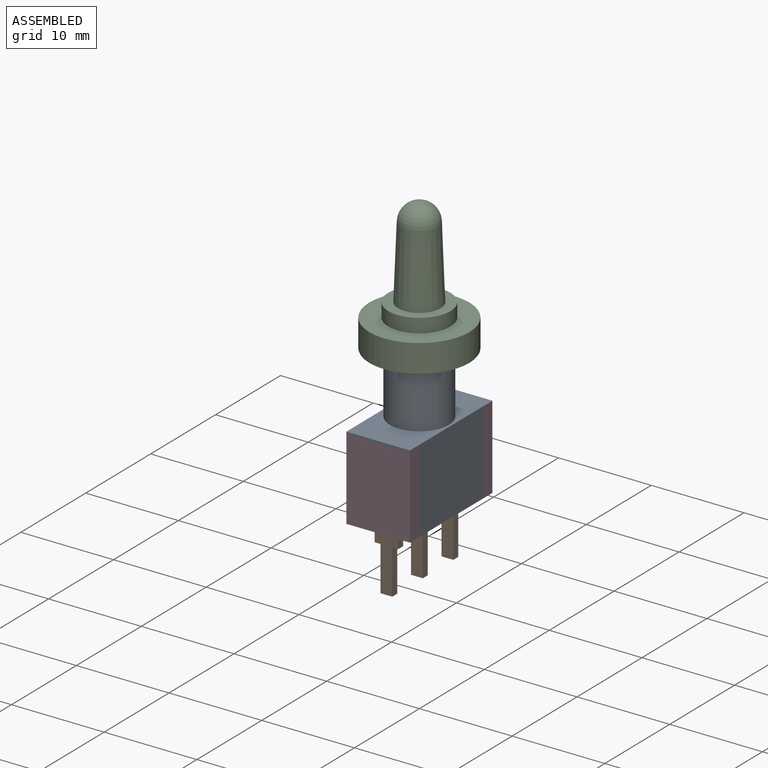
[diagram: assembled view]
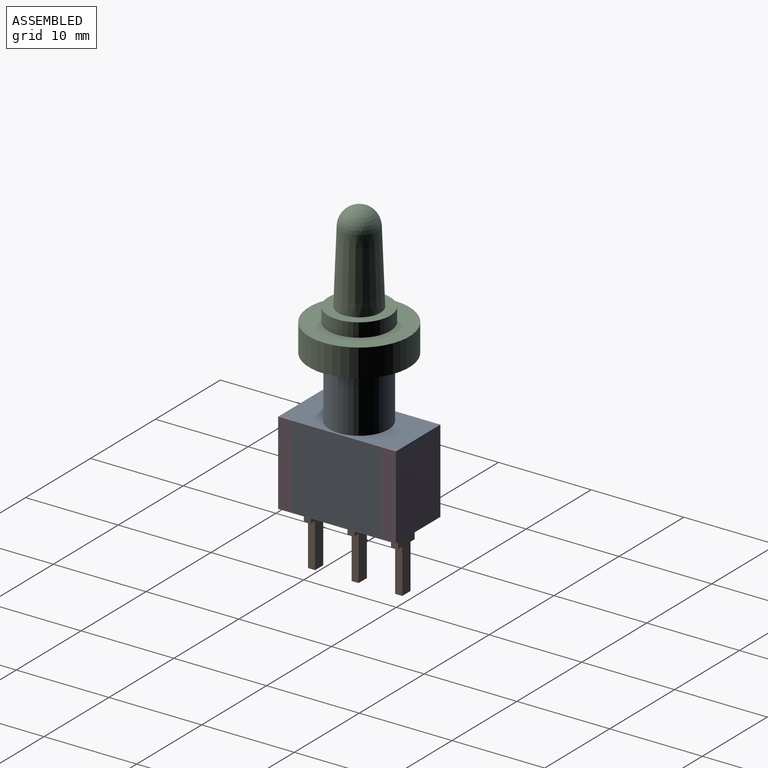
[diagram: assembled view, second angle]
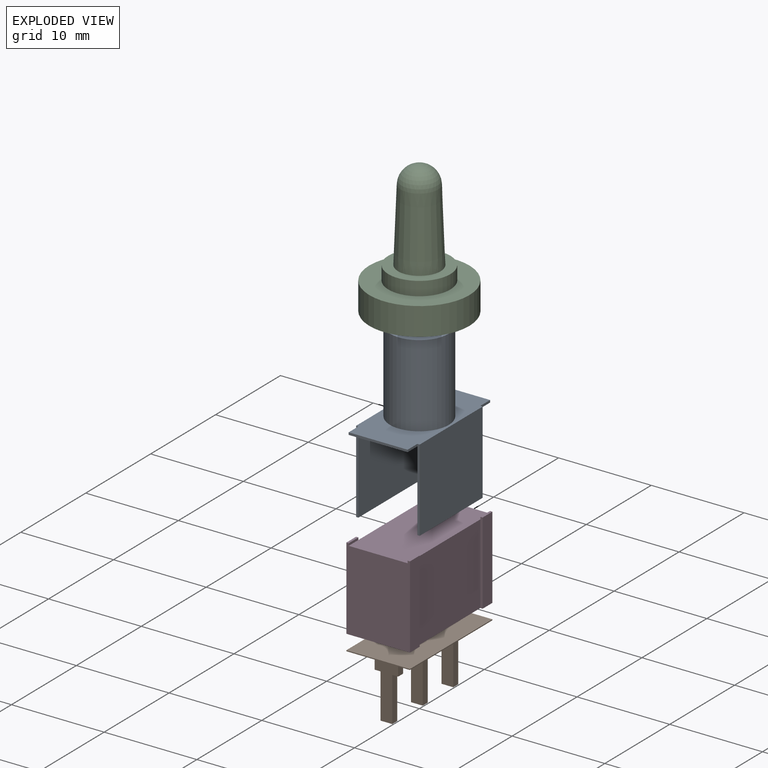
[diagram: exploded view]
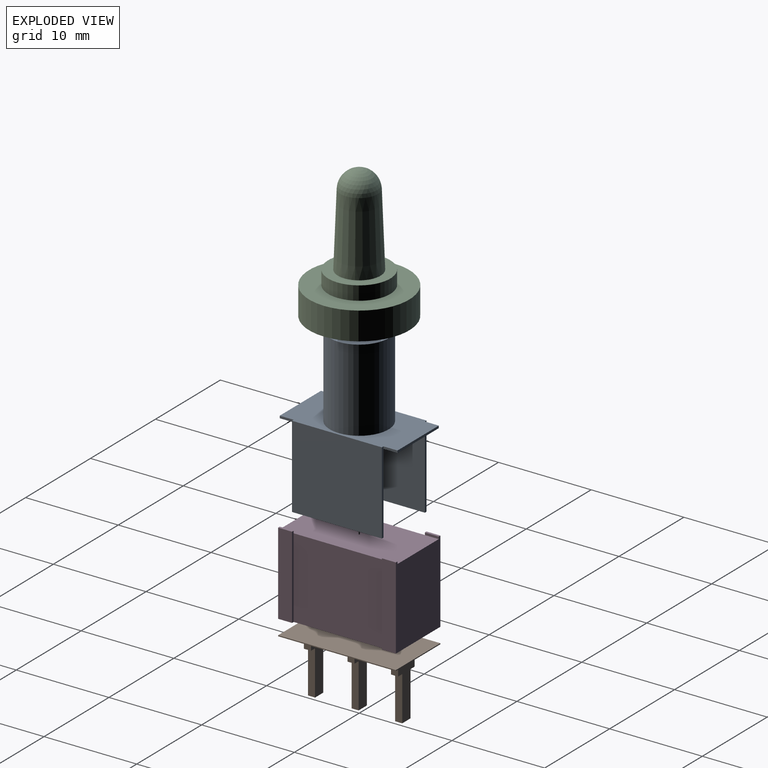
[diagram: exploded view, second angle]
ASSEMBLY  parts=4 mates=3
PART A: 20 faces, bbox 6.9x12.7x17.8 mm
  f0: plane 12.7x6.36mm, normal (0,0,-1), area 80.8mm2, adj f3,f4,f8,f9,f10,f14,f16,f18
  f1: cylinder r=3.17mm len=8.89mm, axis (0,0,-1), area 177.3mm2, adj f2,f15
  f2: plane 6.35x6.35mm, normal (0,0,1), area 31.7mm2, adj f1
  f3: plane 6.36x0.25mm, normal (0,1,0), area 1.6mm2, adj f0,f4,f14,f15
  f4: plane 1.5x0.25mm, normal (-1,0,0), area 0.4mm2, adj f0,f3,f5,f15
  f5: plane 8.89x0.25mm, normal (0,1,0), area 2.2mm2, adj f4,f6,f15,f16,f17
  f6: plane 9.7x8.89mm, normal (-1,0,0), area 86.2mm2, adj f5,f7,f15,f17
  f7: plane 8.89x0.25mm, normal (0,-1,0), area 2.2mm2, adj f6,f8,f15,f16,f17
  f8: plane 1.5x0.25mm, normal (-1,0,0), area 0.4mm2, adj f0,f7,f9,f15
  f9: plane 6.36x0.25mm, normal (0,-1,0), area 1.6mm2, adj f0,f8,f10,f15
  f10: plane 1.5x0.25mm, normal (1,0,0), area 0.4mm2, adj f0,f9,f11,f15
  f11: plane 8.89x0.25mm, normal (0,-1,0), area 2.2mm2, adj f10,f12,f15,f18,f19
  f12: plane 9.7x8.89mm, normal (1,0,0), area 86.2mm2, adj f11,f13,f15,f19
  f13: plane 8.89x0.25mm, normal (0,1,0), area 2.2mm2, adj f12,f14,f15,f18,f19
  f14: plane 1.5x0.25mm, normal (1,0,0), area 0.4mm2, adj f0,f3,f13,f15
  f15: plane 12.7x6.86mm, normal (0,0,1), area 54mm2, adj f1,f3,f4,f5,f6,f7,f8,f9
  f16: plane 9.7x8.64mm, normal (1,0,0), area 83.8mm2, adj f0,f5,f7,f17
  f17: plane 9.7x0.25mm, normal (0,0,-1), area 2.4mm2, adj f5,f6,f7,f16
  f18: plane 9.7x8.64mm, normal (-1,0,0), area 83.8mm2, adj f0,f11,f13,f19
  f19: plane 9.7x0.25mm, normal (0,0,-1), area 2.4mm2, adj f11,f12,f13,f18
PART B: 33 faces, bbox 6.9x12.7x6.6 mm
  f0: plane 0.76x0.64mm, normal (0,0,-1), area 0.5mm2, adj f14,f15,f17,f32
  f1: plane 0.76x0.64mm, normal (0,0,-1), area 0.5mm2, adj f9,f10,f12,f29
  f2: plane 0.76x0.64mm, normal (0,0,-1), area 0.5mm2, adj f19,f20,f22,f26
  f3: plane 6.86x0.1mm, normal (0,1,0), area 0.7mm2, adj f4,f6,f7,f8
  f4: plane 12.7x0.1mm, normal (1,0,0), area 1.3mm2, adj f3,f5,f7,f8
  f5: plane 6.86x0.1mm, normal (0,-1,0), area 0.7mm2, adj f4,f6,f7,f8
  f6: plane 12.7x0.1mm, normal (-1,0,0), area 1.3mm2, adj f3,f5,f7,f8
  f7: plane 12.7x6.86mm, normal (0,0,-1), area 81.3mm2, adj f3,f4,f5,f6,f9,f10,f11,f12
  f8: plane 12.7x6.86mm, normal (0,0,1), area 87.1mm2, adj f3,f4,f5,f6
  f9: plane 6.5x2.54mm, normal (0,1,0), area 10.4mm2, adj f1,f7,f11,f12,f13,f27,f28,f29
  f10: plane 6.5x2.54mm, normal (0,-1,0), area 10.4mm2, adj f1,f7,f11,f12,f13,f27,f28,f29
  f11: plane 1.7x0.76mm, normal (1,0,0), area 1.3mm2, adj f7,f9,f10,f13
  f12: plane 1.7x0.76mm, normal (-1,0,0), area 1.3mm2, adj f1,f7,f9,f10
  f13: plane 0.76x0.64mm, normal (0,0,-1), area 0.5mm2, adj f9,f10,f11,f28
  f14: plane 6.5x2.54mm, normal (0,1,0), area 10.4mm2, adj f0,f7,f16,f17,f18,f30,f31,f32
  f15: plane 6.5x2.54mm, normal (0,-1,0), area 10.4mm2, adj f0,f7,f16,f17,f18,f30,f31,f32
  f16: plane 1.7x0.76mm, normal (1,0,0), area 1.3mm2, adj f7,f14,f15,f18
  f17: plane 1.7x0.76mm, normal (-1,0,0), area 1.3mm2, adj f0,f7,f14,f15
  f18: plane 0.76x0.64mm, normal (0,0,-1), area 0.5mm2, adj f14,f15,f16,f31
  f19: plane 6.5x2.54mm, normal (0,1,0), area 10.4mm2, adj f2,f7,f21,f22,f23,f24,f25,f26
  f20: plane 6.5x2.54mm, normal (0,-1,0), area 10.4mm2, adj f2,f7,f21,f22,f23,f24,f25,f26
  f21: plane 1.7x0.76mm, normal (1,0,0), area 1.3mm2, adj f7,f19,f20,f23
  f22: plane 1.7x0.76mm, normal (-1,0,0), area 1.3mm2, adj f2,f7,f19,f20
  f23: plane 0.76x0.64mm, normal (0,0,-1), area 0.5mm2, adj f19,f20,f21,f25
  f24: plane 1.27x0.76mm, normal (0,0,-1), area 1mm2, adj f19,f20,f25,f26
  f25: plane 4.8x0.76mm, normal (1,0,0), area 3.6mm2, adj f19,f20,f23,f24
  f26: plane 4.8x0.76mm, normal (-1,0,0), area 3.6mm2, adj f2,f19,f20,f24
  f27: plane 1.27x0.76mm, normal (0,0,-1), area 1mm2, adj f9,f10,f28,f29
  f28: plane 4.8x0.76mm, normal (1,0,0), area 3.6mm2, adj f9,f10,f13,f27
  f29: plane 4.8x0.76mm, normal (-1,0,0), area 3.6mm2, adj f1,f9,f10,f27
  f30: plane 1.27x0.76mm, normal (0,0,-1), area 1mm2, adj f14,f15,f31,f32
  f31: plane 4.8x0.76mm, normal (1,0,0), area 3.6mm2, adj f14,f15,f18,f30
  f32: plane 4.8x0.76mm, normal (-1,0,0), area 3.6mm2, adj f0,f14,f15,f30
PART C: 9 faces, bbox 10.8x10.8x14.3 mm
  f0: cone r=2mm half-angle=2.2deg, axis (0,0,-1), area 106.4mm2, adj f1,f8
  f1: sphere r=2mm, area 24.2mm2, adj f0
  f2: plane 6x6mm, normal (0,0,-1), area 28.3mm2, adj f3
  f3: cylinder r=3mm len=6mm, axis (0,0,-1), area 42.4mm2, adj f2,f4
  f4: plane 10.8x10.8mm, normal (0,0,-1), area 63.3mm2, adj f3,f5
  f5: cylinder r=5.4mm len=10.8mm, axis (0,0,-1), area 101.8mm2, adj f4,f6
  f6: plane 10.8x10.8mm, normal (0,0,1), area 56.4mm2, adj f5,f7
  f7: cylinder r=3.35mm len=6.7mm, axis (0,0,-1), area 31.6mm2, adj f6,f8
  f8: plane 6.7x6.7mm, normal (0,0,1), area 18.6mm2, adj f0,f7
PART D: 22 faces, bbox 6.9x12.7x8.9 mm
  f0: plane 8.89x1.5mm, normal (-1,0,0), area 13.3mm2, adj f3,f6,f7,f13
  f1: plane 8.89x1.5mm, normal (1,0,0), area 13.3mm2, adj f3,f4,f7,f18
  f2: plane 8.89x6.86mm, normal (0,-1,0), area 59.4mm2, adj f3,f5,f8,f9,f10,f11,f15,f16
  f3: plane 12.7x6.86mm, normal (0,0,-1), area 82.3mm2, adj f0,f1,f2,f7,f8,f9,f13,f14
  f4: plane 1.5x0.25mm, normal (0,0,1), area 0.4mm2, adj f1,f7,f18,f19
  f5: plane 1.5x0.25mm, normal (0,0,1), area 0.4mm2, adj f2,f8,f14,f15
  f6: plane 1.5x0.25mm, normal (0,0,1), area 0.4mm2, adj f0,f7,f12,f13
  f7: plane 8.89x6.86mm, normal (0,1,0), area 59.4mm2, adj f0,f1,f3,f4,f6,f11,f12,f19
  f8: plane 8.89x1.5mm, normal (-1,0,0), area 13.3mm2, adj f2,f3,f5,f14
  f9: plane 8.89x1.5mm, normal (1,0,0), area 13.3mm2, adj f2,f3,f10,f17
  f10: plane 1.5x0.25mm, normal (0,0,1), area 0.4mm2, adj f2,f9,f16,f17
  f11: plane 12.7x6.36mm, normal (0,0,1), area 80.8mm2, adj f2,f7,f12,f15,f16,f19,f20,f21
  f12: plane 1.5x0.25mm, normal (1,0,0), area 0.4mm2, adj f6,f7,f11,f13
  f13: plane 8.89x0.25mm, normal (0,-1,0), area 2.2mm2, adj f0,f3,f6,f12,f20
  f14: plane 8.89x0.25mm, normal (0,1,0), area 2.2mm2, adj f3,f5,f8,f15,f20
  f15: plane 1.5x0.25mm, normal (1,0,0), area 0.4mm2, adj f2,f5,f11,f14
  f16: plane 1.5x0.25mm, normal (-1,0,0), area 0.4mm2, adj f2,f10,f11,f17
  f17: plane 8.89x0.25mm, normal (0,1,0), area 2.2mm2, adj f3,f9,f10,f16,f21
  f18: plane 8.89x0.25mm, normal (0,-1,0), area 2.2mm2, adj f1,f3,f4,f19,f21
  f19: plane 1.5x0.25mm, normal (-1,0,0), area 0.4mm2, adj f4,f7,f11,f18
  f20: plane 9.7x8.64mm, normal (-1,0,0), area 83.8mm2, adj f3,f11,f13,f14
  f21: plane 9.7x8.64mm, normal (1,0,0), area 83.8mm2, adj f3,f11,f17,f18
PLACE A at identity fixed
PLACE B at identity
PLACE C t=(0,0,6.64)mm
PLACE D at identity
MATE fastened B.f8 <-> D.f3  axis (0,0,1) through (0,0,-8.89)mm
MATE fastened C.f0 <-> A.f1  axis (0,0,-1) through (0,0,8.89)mm
MATE fastened D.f11 <-> A.f1  axis (0,0,1) through (0,0,-0.25)mm
